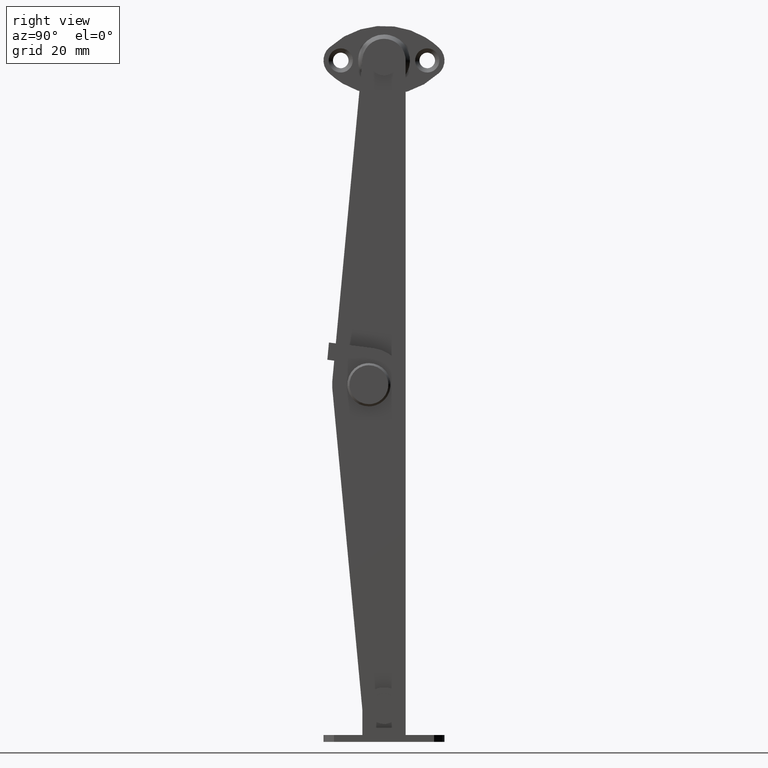
[diagram: clean part render]
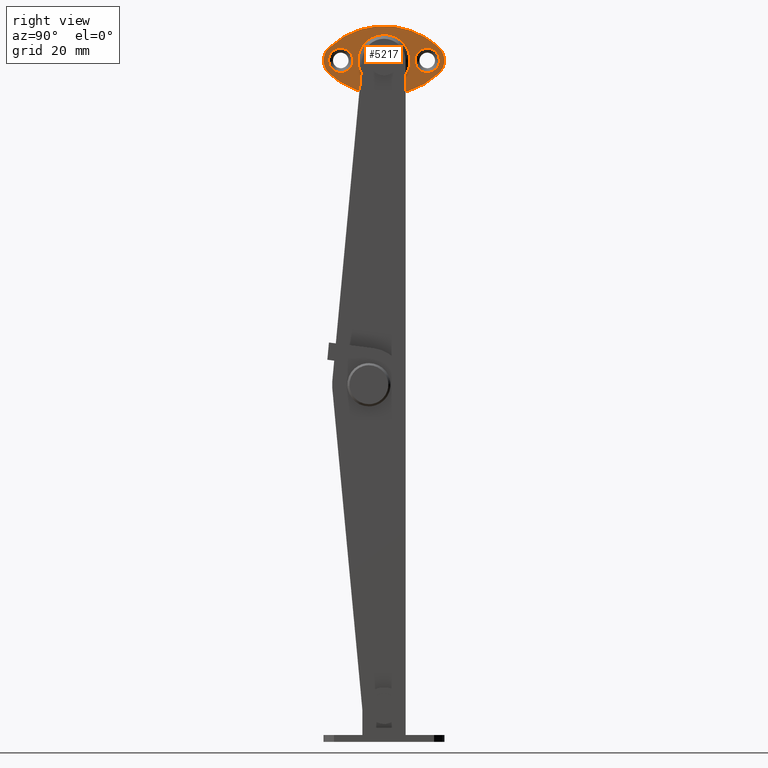
[diagram: same view with one face highlighted and labeled with its STEP entity id]
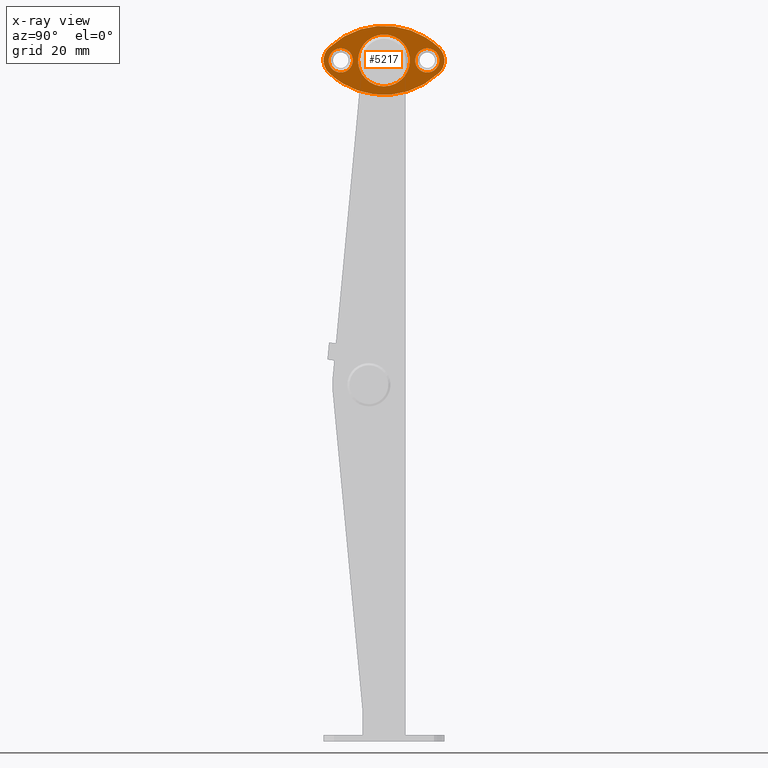
[diagram: x-ray of the same camera — body ghosted, the highlighted face saturated]
A machine part, right view. The second image highlights one B-rep face of the part: STEP entity #5217.
The next image is the same camera in x-ray: the body ghosted, the highlighted face saturated — about 0% of this face is hidden behind the body in this view.
In plain terms, the highlighted face is a freeform B-spline surface patch.
Its self-contained STEP definition (entity closure, byte-faithful):
#3657=CARTESIAN_POINT('',(-4.500007999774535,9.291309534543789,75.219685469753841));
#3658=VERTEX_POINT('',#3657);
#3664=CARTESIAN_POINT('',(-4.500007999999910,6.499941000000001,77.799999999999997));
#3665=VERTEX_POINT('',#3664);
#3666=CARTESIAN_POINT('',(-4.500007999999910,6.499941000000001,77.799999999999997));
#3667=CARTESIAN_POINT('',(-4.500007999999910,9.088234373483944,77.799999999999983));
#3668=CARTESIAN_POINT('',(-4.500007999774535,9.291309534543789,75.219685469753841));
#3676=(BOUNDED_CURVE()B_SPLINE_CURVE(2,(#3666,#3667,#3668),.UNSPECIFIED.,.F.,.U.)B_SPLINE_CURVE_WITH_KNOTS((3,3),(0.0,0.236331300424187),.UNSPECIFIED.)CURVE()GEOMETRIC_REPRESENTATION_ITEM()RATIONAL_B_SPLINE_CURVE((1.0,0.723120658849563,0.969723355736525))REPRESENTATION_ITEM(''));
#3677=EDGE_CURVE('',#3665,#3658,#3676,.T.);
#3679=CARTESIAN_POINT('',(-4.500007999774534,3.708572465456212,74.780314530246159));
#3680=VERTEX_POINT('',#3679);
#3681=CARTESIAN_POINT('',(-4.500007999774534,3.708572465456212,74.780314530246159));
#3682=CARTESIAN_POINT('',(-4.500007999999910,3.699941000000000,74.889987698672456));
#3683=CARTESIAN_POINT('',(-4.500007999999910,3.699941000000000,75.0));
#3684=CARTESIAN_POINT('',(-4.500007999999910,3.699941000000000,77.799999999999997));
#3685=CARTESIAN_POINT('',(-4.500007999999910,6.499941000000001,77.799999999999997));
#3693=(BOUNDED_CURVE()B_SPLINE_CURVE(2,(#3681,#3682,#3683,#3684,#3685),.UNSPECIFIED.,.F.,.U.)B_SPLINE_CURVE_WITH_KNOTS((3,2,3),(0.736331300424187,0.750000000000000,1.0),.UNSPECIFIED.)CURVE()GEOMETRIC_REPRESENTATION_ITEM()RATIONAL_B_SPLINE_CURVE((0.969723355736525,0.983986122336984,1.0,0.707106781186547,1.0))REPRESENTATION_ITEM(''));
#3694=EDGE_CURVE('',#3680,#3665,#3693,.T.);
#3770=CARTESIAN_POINT('',(-4.500007999999910,6.499941000000001,72.200000000000003));
#3771=VERTEX_POINT('',#3770);
#3772=CARTESIAN_POINT('',(-4.500007999999910,6.499941000000001,72.200000000000003));
#3773=CARTESIAN_POINT('',(-4.500007999999910,3.911647626516063,72.200000000000003));
#3774=CARTESIAN_POINT('',(-4.500007999774534,3.708572465456212,74.780314530246159));
#3782=(BOUNDED_CURVE()B_SPLINE_CURVE(2,(#3772,#3773,#3774),.UNSPECIFIED.,.F.,.U.)B_SPLINE_CURVE_WITH_KNOTS((3,3),(0.500000000000000,0.736331300424186),.UNSPECIFIED.)CURVE()GEOMETRIC_REPRESENTATION_ITEM()RATIONAL_B_SPLINE_CURVE((1.0,0.723120658849564,0.969723355736524))REPRESENTATION_ITEM(''));
#3783=EDGE_CURVE('',#3771,#3680,#3782,.T.);
#3785=CARTESIAN_POINT('',(-4.500007999774535,9.291309534543789,75.219685469753841));
#3786=CARTESIAN_POINT('',(-4.500007999999910,9.299940999999999,75.110012301327558));
#3787=CARTESIAN_POINT('',(-4.500007999999910,9.299941000000001,75.0));
#3788=CARTESIAN_POINT('',(-4.500007999999910,9.299941000000001,72.200000000000003));
#3789=CARTESIAN_POINT('',(-4.500007999999910,6.499941000000001,72.200000000000003));
#3797=(BOUNDED_CURVE()B_SPLINE_CURVE(2,(#3785,#3786,#3787,#3788,#3789),.UNSPECIFIED.,.F.,.U.)B_SPLINE_CURVE_WITH_KNOTS((3,2,3),(0.236331300424187,0.250000000000000,0.500000000000000),.UNSPECIFIED.)CURVE()GEOMETRIC_REPRESENTATION_ITEM()RATIONAL_B_SPLINE_CURVE((0.969723355736525,0.983986122336984,1.0,0.707106781186547,1.0))REPRESENTATION_ITEM(''));
#3798=EDGE_CURVE('',#3658,#3771,#3797,.T.);
#3839=CARTESIAN_POINT('',(-4.500007999774530,-10.708674465456211,75.219685469753827));
#3840=VERTEX_POINT('',#3839);
#3846=CARTESIAN_POINT('',(-4.500007999999910,-13.500043000000000,77.799999999999997));
#3847=VERTEX_POINT('',#3846);
#3848=CARTESIAN_POINT('',(-4.500007999999910,-13.500043000000000,77.799999999999997));
#3849=CARTESIAN_POINT('',(-4.500007999999911,-10.911749626516043,77.800000000000011));
#3850=CARTESIAN_POINT('',(-4.500007999774530,-10.708674465456212,75.219685469753827));
#3858=(BOUNDED_CURVE()B_SPLINE_CURVE(2,(#3848,#3849,#3850),.UNSPECIFIED.,.F.,.U.)B_SPLINE_CURVE_WITH_KNOTS((3,3),(0.0,0.236331300424188),.UNSPECIFIED.)CURVE()GEOMETRIC_REPRESENTATION_ITEM()RATIONAL_B_SPLINE_CURVE((1.0,0.723120658849563,0.969723355736526))REPRESENTATION_ITEM(''));
#3859=EDGE_CURVE('',#3847,#3840,#3858,.T.);
#3861=CARTESIAN_POINT('',(-4.500007999774532,-16.291411534543780,74.780314530246173));
#3862=VERTEX_POINT('',#3861);
#3863=CARTESIAN_POINT('',(-4.500007999774532,-16.291411534543784,74.780314530246173));
#3864=CARTESIAN_POINT('',(-4.500007999999910,-16.300043000000002,74.889987698672456));
#3865=CARTESIAN_POINT('',(-4.500007999999910,-16.300042999999999,75.0));
#3866=CARTESIAN_POINT('',(-4.500007999999910,-16.300042999999995,77.799999999999997));
#3867=CARTESIAN_POINT('',(-4.500007999999910,-13.500043000000000,77.799999999999997));
#3875=(BOUNDED_CURVE()B_SPLINE_CURVE(2,(#3863,#3864,#3865,#3866,#3867),.UNSPECIFIED.,.F.,.U.)B_SPLINE_CURVE_WITH_KNOTS((3,2,3),(0.736331300424188,0.750000000000000,1.0),.UNSPECIFIED.)CURVE()GEOMETRIC_REPRESENTATION_ITEM()RATIONAL_B_SPLINE_CURVE((0.969723355736527,0.983986122336985,1.0,0.707106781186547,1.0))REPRESENTATION_ITEM(''));
#3876=EDGE_CURVE('',#3862,#3847,#3875,.T.);
#3952=CARTESIAN_POINT('',(-4.500007999999910,-13.500043000000000,72.200000000000003));
#3953=VERTEX_POINT('',#3952);
#3954=CARTESIAN_POINT('',(-4.500007999999910,-13.500043000000000,72.200000000000003));
#3955=CARTESIAN_POINT('',(-4.500007999999910,-16.088336373483969,72.200000000000017));
#3956=CARTESIAN_POINT('',(-4.500007999774532,-16.291411534543784,74.780314530246173));
#3964=(BOUNDED_CURVE()B_SPLINE_CURVE(2,(#3954,#3955,#3956),.UNSPECIFIED.,.F.,.U.)B_SPLINE_CURVE_WITH_KNOTS((3,3),(0.500000000000000,0.736331300424188),.UNSPECIFIED.)CURVE()GEOMETRIC_REPRESENTATION_ITEM()RATIONAL_B_SPLINE_CURVE((1.0,0.723120658849561,0.969723355736528))REPRESENTATION_ITEM(''));
#3965=EDGE_CURVE('',#3953,#3862,#3964,.T.);
#3967=CARTESIAN_POINT('',(-4.500007999774530,-10.708674465456211,75.219685469753813));
#3968=CARTESIAN_POINT('',(-4.500007999999911,-10.700042999999999,75.110012301327529));
#3969=CARTESIAN_POINT('',(-4.500007999999910,-10.700043000000001,75.0));
#3970=CARTESIAN_POINT('',(-4.500007999999910,-10.700042999999999,72.200000000000003));
#3971=CARTESIAN_POINT('',(-4.500007999999910,-13.500043000000000,72.200000000000003));
#3979=(BOUNDED_CURVE()B_SPLINE_CURVE(2,(#3967,#3968,#3969,#3970,#3971),.UNSPECIFIED.,.F.,.U.)B_SPLINE_CURVE_WITH_KNOTS((3,2,3),(0.236331300424188,0.250000000000000,0.500000000000000),.UNSPECIFIED.)CURVE()GEOMETRIC_REPRESENTATION_ITEM()RATIONAL_B_SPLINE_CURVE((0.969723355736527,0.983986122336985,1.0,0.707106781186547,1.0))REPRESENTATION_ITEM(''));
#3980=EDGE_CURVE('',#3840,#3953,#3979,.T.);
#4803=CARTESIAN_POINT('',(-4.500007999787137,-3.500043000000000,69.000000362804940));
#4804=VERTEX_POINT('',#4803);
#4818=CARTESIAN_POINT('',(-4.500007999999910,-3.500043000000000,80.999999637242539));
#4819=VERTEX_POINT('',#4818);
#4820=CARTESIAN_POINT('',(-4.500007999787137,-3.500043000000000,69.000000362804940));
#4821=CARTESIAN_POINT('',(-4.500007999999911,2.499956637242540,69.000000362757461));
#4822=CARTESIAN_POINT('',(-4.500007999999910,2.499956637242540,75.0));
#4823=CARTESIAN_POINT('',(-4.500007999999911,2.499956637242540,80.999999637242539));
#4824=CARTESIAN_POINT('',(-4.500007999999910,-3.500043000000000,80.999999637242539));
#4832=(BOUNDED_CURVE()B_SPLINE_CURVE(2,(#4820,#4821,#4822,#4823,#4824),.UNSPECIFIED.,.F.,.U.)B_SPLINE_CURVE_WITH_KNOTS((3,2,3),(0.0,0.250000000000000,0.500000000000000),.UNSPECIFIED.)CURVE()GEOMETRIC_REPRESENTATION_ITEM()RATIONAL_B_SPLINE_CURVE((1.0,0.707106781186548,1.0,0.707106781186548,1.0))REPRESENTATION_ITEM(''));
#4833=EDGE_CURVE('',#4804,#4819,#4832,.T.);
#4835=CARTESIAN_POINT('',(-4.500008000003792,-9.113098684990986,72.880188328150012));
#4836=VERTEX_POINT('',#4835);
#4837=CARTESIAN_POINT('',(-4.500007999999910,-3.500043000000000,80.999999637242539));
#4838=CARTESIAN_POINT('',(-4.500007999999911,-9.500042637242540,80.999999637242539));
#4839=CARTESIAN_POINT('',(-4.500007999999910,-9.500042637242540,75.0));
#4840=CARTESIAN_POINT('',(-4.500007999999909,-9.500042637242540,73.904778380061231));
#4841=CARTESIAN_POINT('',(-4.500008000003792,-9.113098684990986,72.880188328150012));
#4849=(BOUNDED_CURVE()B_SPLINE_CURVE(2,(#4837,#4838,#4839,#4840,#4841),.UNSPECIFIED.,.F.,.U.)B_SPLINE_CURVE_WITH_KNOTS((3,2,3),(0.500000000000000,0.750000000000000,0.810000000002926),.UNSPECIFIED.)CURVE()GEOMETRIC_REPRESENTATION_ITEM()RATIONAL_B_SPLINE_CURVE((1.0,0.707106781186548,1.0,0.929705627481344,0.893152553773288))REPRESENTATION_ITEM(''));
#4850=EDGE_CURVE('',#4819,#4836,#4849,.T.);
#4887=CARTESIAN_POINT('',(-4.500008000003792,-9.113098684990986,72.880188328150012));
#4888=CARTESIAN_POINT('',(-4.500007999999911,-7.647717224365052,69.000000362757461));
#4889=CARTESIAN_POINT('',(-4.500007999787137,-3.500043000000000,69.000000362804940));
#4897=(BOUNDED_CURVE()B_SPLINE_CURVE(2,(#4887,#4888,#4889),.UNSPECIFIED.,.F.,.U.)B_SPLINE_CURVE_WITH_KNOTS((3,3),(0.810000000002926,1.0),.UNSPECIFIED.)CURVE()GEOMETRIC_REPRESENTATION_ITEM()RATIONAL_B_SPLINE_CURVE((0.893152553773288,0.777401153705204,1.0))REPRESENTATION_ITEM(''));
#4898=EDGE_CURVE('',#4836,#4804,#4897,.T.);
#4972=CARTESIAN_POINT('',(-4.500007999999999,-16.258628331201749,72.103450315431004));
#4973=VERTEX_POINT('',#4972);
#4979=CARTESIAN_POINT('',(-4.500007999999999,-16.258625550113351,77.896559476087901));
#4980=VERTEX_POINT('',#4979);
#4981=CARTESIAN_POINT('',(-4.500007999999999,-16.258628331201841,72.103450315430905));
#4982=CARTESIAN_POINT('',(-4.500007999999999,-17.500008670386634,73.285717927454030));
#4983=CARTESIAN_POINT('',(-4.500007999999999,-17.500007847411378,75.000005491707100));
#4984=CARTESIAN_POINT('',(-4.500007999999999,-17.500007024436123,76.714293055960169));
#4985=CARTESIAN_POINT('',(-4.500007999999999,-16.258625550113319,77.896559476087873));
#4993=(BOUNDED_CURVE()B_SPLINE_CURVE(2,(#4981,#4982,#4983,#4984,#4985),.UNSPECIFIED.,.F.,.U.)B_SPLINE_CURVE_WITH_KNOTS((3,2,3),(0.0,0.500000000000000,1.0),.UNSPECIFIED.)CURVE()GEOMETRIC_REPRESENTATION_ITEM()RATIONAL_B_SPLINE_CURVE((1.0,0.919144987240248,1.0,0.919144987240248,1.0))REPRESENTATION_ITEM(''));
#4994=EDGE_CURVE('',#4973,#4980,#4993,.T.);
#5033=CARTESIAN_POINT('',(-4.500007999999999,9.258611971371341,72.103438067953306));
#5034=VERTEX_POINT('',#5033);
#5040=CARTESIAN_POINT('',(-4.500007999999999,9.258611971371341,72.103438067953306));
#5041=CARTESIAN_POINT('',(-4.500008000000000,-3.500014012044895,59.952382662998595));
#5042=CARTESIAN_POINT('',(-4.500007999999999,-16.258628331201798,72.103450315430948));
#5050=(BOUNDED_CURVE()B_SPLINE_CURVE(2,(#5040,#5041,#5042),.UNSPECIFIED.,.F.,.U.)CURVE()GEOMETRIC_REPRESENTATION_ITEM()QUASI_UNIFORM_CURVE()RATIONAL_B_SPLINE_CURVE((1.0,0.724138080501005,1.0))REPRESENTATION_ITEM(''));
#5051=EDGE_CURVE('',#5034,#4973,#5050,.T.);
#5088=CARTESIAN_POINT('',(-4.500007999999999,9.258613325532370,77.896553499492796));
#5089=VERTEX_POINT('',#5088);
#5095=CARTESIAN_POINT('',(-4.500007999999999,9.258613325532364,77.896553499492796));
#5096=CARTESIAN_POINT('',(-4.500007999999999,10.499995720351196,76.714285093752451));
#5097=CARTESIAN_POINT('',(-4.500007999999999,10.499995319630001,74.999995493545498));
#5098=CARTESIAN_POINT('',(-4.500007999999999,10.499994918908815,73.285705893338502));
#5099=CARTESIAN_POINT('',(-4.500007999999999,9.258611971371371,72.103438067953277));
#5107=(BOUNDED_CURVE()B_SPLINE_CURVE(2,(#5095,#5096,#5097,#5098,#5099),.UNSPECIFIED.,.F.,.U.)B_SPLINE_CURVE_WITH_KNOTS((3,2,3),(0.0,0.500000000000000,1.0),.UNSPECIFIED.)CURVE()GEOMETRIC_REPRESENTATION_ITEM()RATIONAL_B_SPLINE_CURVE((1.0,0.919144938909003,1.0,0.919144938909003,1.0))REPRESENTATION_ITEM(''));
#5108=EDGE_CURVE('',#5089,#5034,#5107,.T.);
#5142=CARTESIAN_POINT('',(-4.500007999999999,-16.258625550113351,77.896559476087901));
#5143=CARTESIAN_POINT('',(-4.500007999999999,-3.500003266295469,90.047611352761066));
#5144=CARTESIAN_POINT('',(-4.500007999999999,9.258613325532267,77.896553499492711));
#5152=(BOUNDED_CURVE()B_SPLINE_CURVE(2,(#5142,#5143,#5144),.UNSPECIFIED.,.F.,.U.)CURVE()GEOMETRIC_REPRESENTATION_ITEM()QUASI_UNIFORM_CURVE()RATIONAL_B_SPLINE_CURVE((1.0,0.724138250373273,1.0))REPRESENTATION_ITEM(''));
#5153=EDGE_CURVE('',#4980,#5089,#5152,.T.);
#5189=CARTESIAN_POINT('',(-4.500007999999910,11.898595423554291,83.799199944625201));
#5190=CARTESIAN_POINT('',(-4.500007999999910,-18.898608702354270,83.799199944625201));
#5191=CARTESIAN_POINT('',(-4.500007999999910,11.898595423554291,66.200799631824552));
#5192=CARTESIAN_POINT('',(-4.500007999999910,-18.898608702354270,66.200799631824552));
#5193=B_SPLINE_SURFACE_WITH_KNOTS('',1,1,((#5189,#5191),(#5190,#5192)),.UNSPECIFIED.,.F.,.F.,.U.,(2,2),(2,2),(0.0,30.797204125908550),(0.0,17.598400312800649),.UNSPECIFIED.);
#5194=ORIENTED_EDGE('',*,*,#5153,.F.);
#5195=ORIENTED_EDGE('',*,*,#4994,.F.);
#5196=ORIENTED_EDGE('',*,*,#5051,.F.);
#5197=ORIENTED_EDGE('',*,*,#5108,.F.);
#5198=EDGE_LOOP('',(#5194,#5195,#5196,#5197));
#5199=FACE_OUTER_BOUND('',#5198,.T.);
#5200=ORIENTED_EDGE('',*,*,#4833,.F.);
#5201=ORIENTED_EDGE('',*,*,#4898,.F.);
#5202=ORIENTED_EDGE('',*,*,#4850,.F.);
#5203=EDGE_LOOP('',(#5200,#5201,#5202));
#5204=FACE_BOUND('',#5203,.T.);
#5205=ORIENTED_EDGE('',*,*,#3965,.T.);
#5206=ORIENTED_EDGE('',*,*,#3876,.T.);
#5207=ORIENTED_EDGE('',*,*,#3859,.T.);
#5208=ORIENTED_EDGE('',*,*,#3980,.T.);
#5209=EDGE_LOOP('',(#5205,#5206,#5207,#5208));
#5210=FACE_BOUND('',#5209,.T.);
#5211=ORIENTED_EDGE('',*,*,#3783,.T.);
#5212=ORIENTED_EDGE('',*,*,#3694,.T.);
#5213=ORIENTED_EDGE('',*,*,#3677,.T.);
#5214=ORIENTED_EDGE('',*,*,#3798,.T.);
#5215=EDGE_LOOP('',(#5211,#5212,#5213,#5214));
#5216=FACE_BOUND('',#5215,.T.);
#5217=ADVANCED_FACE('',(#5199,#5204,#5210,#5216),#5193,.T.);